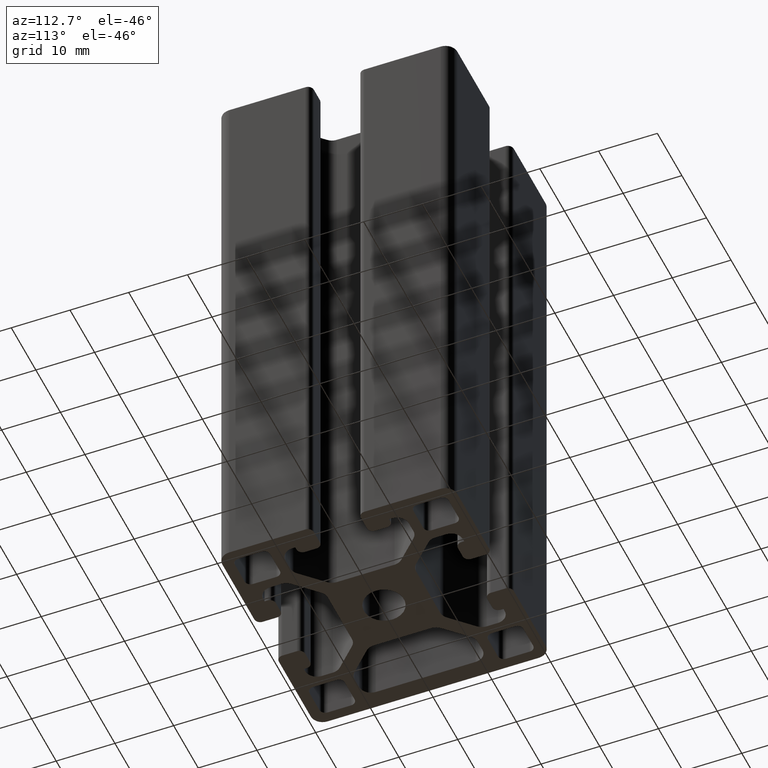
[diagram: clean part render]
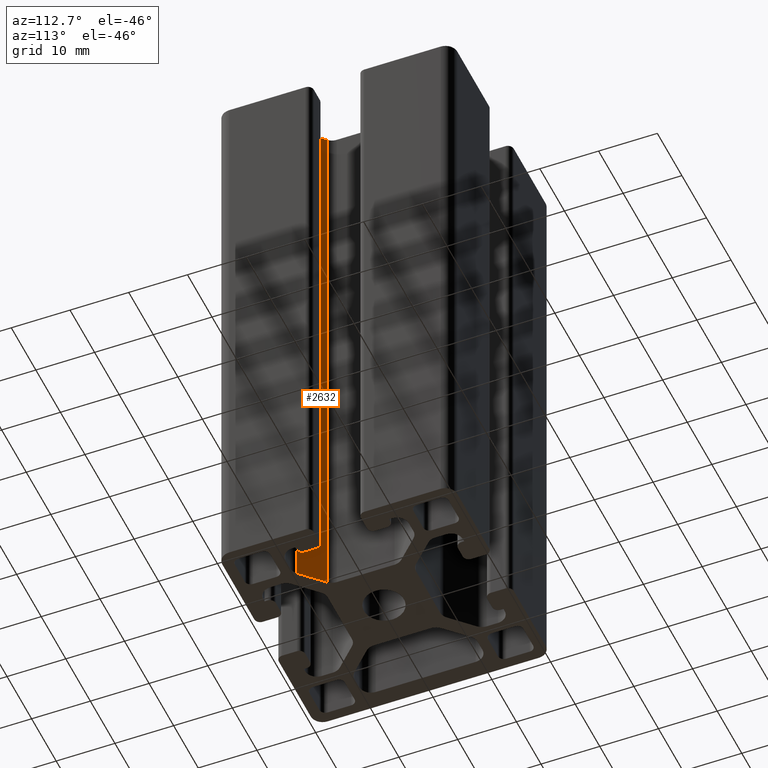
[diagram: same view with one face highlighted and labeled with its STEP entity id]
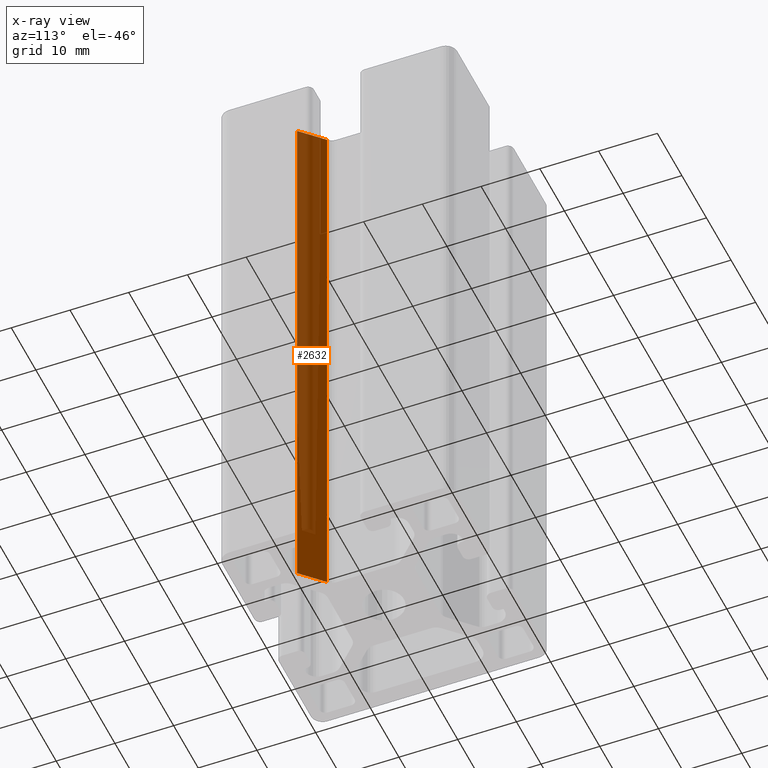
[diagram: x-ray of the same camera — body ghosted, the highlighted face saturated]
A machine part, auxiliary view. The second image highlights one B-rep face of the part: STEP entity #2632.
The next image is the same camera in x-ray: the body ghosted, the highlighted face saturated — about 62% of this face is hidden behind the body in this view.
In plain terms, the highlighted planar face has unit normal (-0.7071, -0.7071, 0).
Its self-contained STEP definition (entity closure, byte-faithful):
#209=LINE('',#4302,#475);
#210=LINE('',#4306,#476);
#211=LINE('',#4308,#477);
#212=LINE('',#4309,#478);
#475=VECTOR('',#3508,100.);
#476=VECTOR('',#3513,5.08578643762691);
#477=VECTOR('',#3514,100.);
#478=VECTOR('',#3515,5.08578643762691);
#595=PLANE('',#2863);
#726=FACE_OUTER_BOUND('',#860,.T.);
#860=EDGE_LOOP('',(#2071,#2072,#2073,#2074));
#1233=VERTEX_POINT('',#4299);
#1234=VERTEX_POINT('',#4301);
#1235=VERTEX_POINT('',#4305);
#1236=VERTEX_POINT('',#4307);
#1586=EDGE_CURVE('',#1234,#1233,#209,.T.);
#1588=EDGE_CURVE('',#1235,#1233,#210,.T.);
#1589=EDGE_CURVE('',#1236,#1235,#211,.T.);
#1590=EDGE_CURVE('',#1234,#1236,#212,.T.);
#2071=ORIENTED_EDGE('',*,*,#1588,.F.);
#2072=ORIENTED_EDGE('',*,*,#1589,.F.);
#2073=ORIENTED_EDGE('',*,*,#1590,.F.);
#2074=ORIENTED_EDGE('',*,*,#1586,.T.);
#2632=ADVANCED_FACE('',(#726),#595,.F.);
#2863=AXIS2_PLACEMENT_3D('',#4304,#3511,#3512);
#3508=DIRECTION('',(0.,0.,1.));
#3511=DIRECTION('center_axis',(-0.707106781186548,-0.707106781186547,0.));
#3512=DIRECTION('ref_axis',(0.707106781186547,-0.707106781186548,0.));
#3513=DIRECTION('',(-0.707106781186547,0.707106781186548,0.));
#3514=DIRECTION('',(0.,0.,1.));
#3515=DIRECTION('',(0.707106781186547,-0.707106781186548,0.));
#4299=CARTESIAN_POINT('',(8.0857864376269,-6.31801948466054,100.));
#4301=CARTESIAN_POINT('',(8.0857864376269,-6.31801948466054,0.));
#4302=CARTESIAN_POINT('',(8.0857864376269,-6.31801948466054,0.));
#4304=CARTESIAN_POINT('Origin',(8.0857864376269,-6.31801948466054,0.));
#4305=CARTESIAN_POINT('',(11.6819805153395,-9.9142135623731,100.));
#4306=CARTESIAN_POINT('',(4.48483495705505,-2.71706800408868,100.));
#4307=CARTESIAN_POINT('',(11.6819805153395,-9.9142135623731,0.));
#4308=CARTESIAN_POINT('',(11.6819805153395,-9.9142135623731,0.));
#4309=CARTESIAN_POINT('',(4.48483495705505,-2.71706800408868,0.));